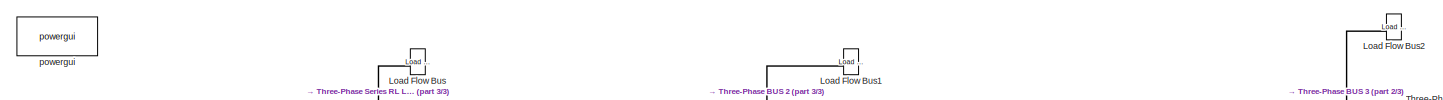
[diagram: root canvas - part 1/3, top center region]
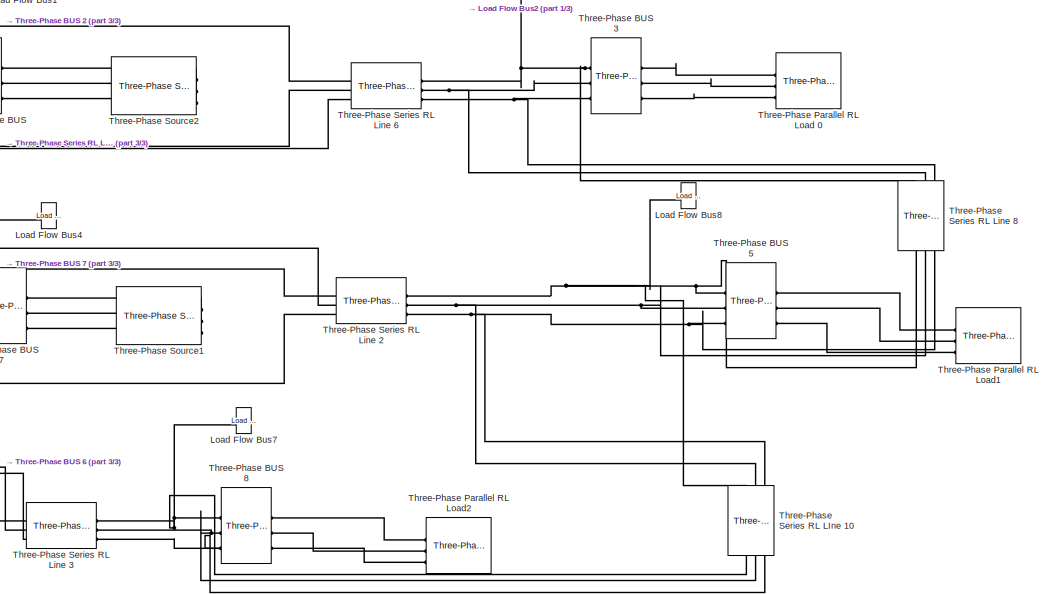
[diagram: root canvas - part 2/3, middle right region]
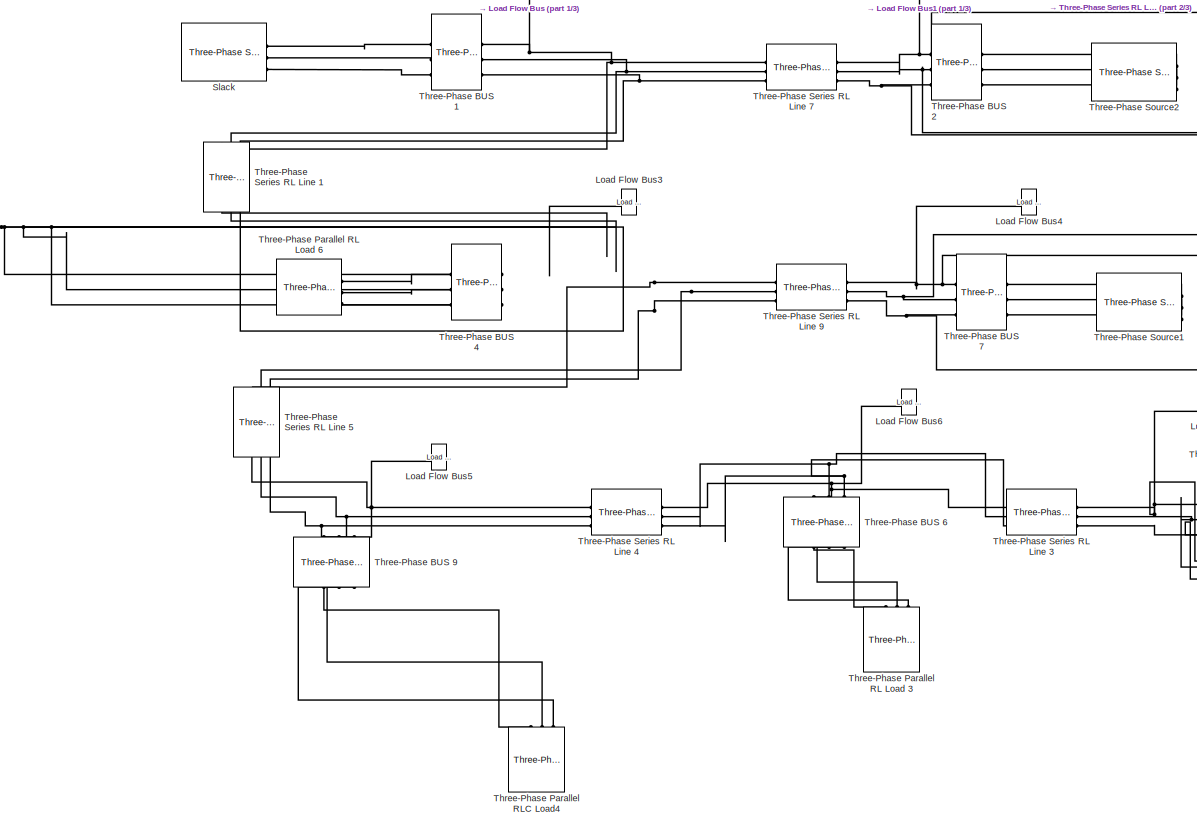
[diagram: root canvas - part 3/3, left side, full height]
MODEL slx_f0f31d5328f1
KIND model
CONFIG AbsTol = auto
CONFIG EnableMultiTasking = off
CONFIG FixedStep = auto
CONFIG MaxStep = auto
CONFIG MinStep = auto
CONFIG RelTol = 1e-3
CONFIG SampleTimeConstraint = Unconstrained
CONFIG SolverName = VariableStepAuto
CONFIG StartTime = 0.0
CONFIG StopTime = 10.0
BLOCK [Reference] Load Flow Bus  REF=spsLoadFlowBusLib/Load Flow Bus
  AttributesFormatString = %<ID>\n%<Vbase>V\n%<VLF>pu\n%<angleLF>deg.
  LibrarySourceBlock = sps_lib/Utilities/Load Flow Bus
  SourceBlock = spsLoadFlowBusLib/Load Flow Bus
  SourceType = Load Flow Bus
BLOCK [Reference] Load Flow Bus1  REF=spsLoadFlowBusLib/Load Flow Bus
  AttributesFormatString = %<ID>\n%<Vbase>V\n%<VLF>pu\n%<angleLF>deg.
  LibrarySourceBlock = sps_lib/Utilities/Load Flow Bus
  SourceBlock = spsLoadFlowBusLib/Load Flow Bus
  SourceType = Load Flow Bus
BLOCK [Reference] Load Flow Bus2  REF=spsLoadFlowBusLib/Load Flow Bus
  AttributesFormatString = %<ID>\n%<Vbase>V\n%<VLF>pu\n%<angleLF>deg.
  LibrarySourceBlock = sps_lib/Utilities/Load Flow Bus
  SourceBlock = spsLoadFlowBusLib/Load Flow Bus
  SourceType = Load Flow Bus
BLOCK [Reference] Load Flow Bus3  REF=spsLoadFlowBusLib/Load Flow Bus
  AttributesFormatString = %<ID>\n%<Vbase>V\n%<VLF>pu\n%<angleLF>deg.
  LibrarySourceBlock = sps_lib/Utilities/Load Flow Bus
  SourceBlock = spsLoadFlowBusLib/Load Flow Bus
  SourceType = Load Flow Bus
BLOCK [Reference] Load Flow Bus4  REF=spsLoadFlowBusLib/Load Flow Bus
  AttributesFormatString = %<ID>\n%<Vbase>V\n%<VLF>pu\n%<angleLF>deg.
  LibrarySourceBlock = sps_lib/Utilities/Load Flow Bus
  SourceBlock = spsLoadFlowBusLib/Load Flow Bus
  SourceType = Load Flow Bus
BLOCK [Reference] Load Flow Bus5  REF=spsLoadFlowBusLib/Load Flow Bus
  AttributesFormatString = %<ID>\n%<Vbase>V\n%<VLF>pu\n%<angleLF>deg.
  LibrarySourceBlock = sps_lib/Utilities/Load Flow Bus
  SourceBlock = spsLoadFlowBusLib/Load Flow Bus
  SourceType = Load Flow Bus
BLOCK [Reference] Load Flow Bus6  REF=spsLoadFlowBusLib/Load Flow Bus
  AttributesFormatString = %<ID>\n%<Vbase>V\n%<VLF>pu\n%<angleLF>deg.
  LibrarySourceBlock = sps_lib/Utilities/Load Flow Bus
  SourceBlock = spsLoadFlowBusLib/Load Flow Bus
  SourceType = Load Flow Bus
BLOCK [Reference] Load Flow Bus7  REF=spsLoadFlowBusLib/Load Flow Bus
  AttributesFormatString = %<ID>\n%<Vbase>V\n%<VLF>pu\n%<angleLF>deg.
  LibrarySourceBlock = sps_lib/Utilities/Load Flow Bus
  SourceBlock = spsLoadFlowBusLib/Load Flow Bus
  SourceType = Load Flow Bus
BLOCK [Reference] Load Flow Bus8  REF=spsLoadFlowBusLib/Load Flow Bus
  AttributesFormatString = %<ID>\n%<Vbase>V\n%<VLF>pu\n%<angleLF>deg.
  LibrarySourceBlock = sps_lib/Utilities/Load Flow Bus
  SourceBlock = spsLoadFlowBusLib/Load Flow Bus
  SourceType = Load Flow Bus
BLOCK [Reference] Slack  REF=spsThreePhaseSourceLib/Three-Phase Source
  LibrarySourceBlock = sps_lib/Sources/Three-Phase Source
  SourceBlock = spsThreePhaseSourceLib/Three-Phase Source
  SourceType = Three-Phase Source
BLOCK [Reference] Three-Phase BUS 1  REF=spsThreePhaseVIMeasurementLib/Three-Phase
V-I Measurement
  LibrarySourceBlock = sps_lib/Sensors and Measurements/Three-Phase\nV-I Measurement
  SourceBlock = spsThreePhaseVIMeasurementLib/Three-Phase\nV-I Measurement
  SourceType = Three-Phase VI Measurement
BLOCK [Reference] Three-Phase BUS 2  REF=spsThreePhaseVIMeasurementLib/Three-Phase
V-I Measurement
  LibrarySourceBlock = sps_lib/Sensors and Measurements/Three-Phase\nV-I Measurement
  SourceBlock = spsThreePhaseVIMeasurementLib/Three-Phase\nV-I Measurement
  SourceType = Three-Phase VI Measurement
BLOCK [Reference] Three-Phase BUS 3  REF=spsThreePhaseVIMeasurementLib/Three-Phase
V-I Measurement
  LibrarySourceBlock = sps_lib/Sensors and Measurements/Three-Phase\nV-I Measurement
  SourceBlock = spsThreePhaseVIMeasurementLib/Three-Phase\nV-I Measurement
  SourceType = Three-Phase VI Measurement
BLOCK [Reference] Three-Phase BUS 4  REF=spsThreePhaseVIMeasurementLib/Three-Phase
V-I Measurement
  LibrarySourceBlock = sps_lib/Sensors and Measurements/Three-Phase\nV-I Measurement
  SourceBlock = spsThreePhaseVIMeasurementLib/Three-Phase\nV-I Measurement
  SourceType = Three-Phase VI Measurement
BLOCK [Reference] Three-Phase BUS 5  REF=spsThreePhaseVIMeasurementLib/Three-Phase
V-I Measurement
  LibrarySourceBlock = sps_lib/Sensors and Measurements/Three-Phase\nV-I Measurement
  SourceBlock = spsThreePhaseVIMeasurementLib/Three-Phase\nV-I Measurement
  SourceType = Three-Phase VI Measurement
BLOCK [Reference] Three-Phase BUS 6  REF=spsThreePhaseVIMeasurementLib/Three-Phase
V-I Measurement
  LibrarySourceBlock = sps_lib/Sensors and Measurements/Three-Phase\nV-I Measurement
  NameLocation = left
  SourceBlock = spsThreePhaseVIMeasurementLib/Three-Phase\nV-I Measurement
  SourceType = Three-Phase VI Measurement
BLOCK [Reference] Three-Phase BUS 7  REF=spsThreePhaseVIMeasurementLib/Three-Phase
V-I Measurement
  LibrarySourceBlock = sps_lib/Sensors and Measurements/Three-Phase\nV-I Measurement
  SourceBlock = spsThreePhaseVIMeasurementLib/Three-Phase\nV-I Measurement
  SourceType = Three-Phase VI Measurement
BLOCK [Reference] Three-Phase BUS 8  REF=spsThreePhaseVIMeasurementLib/Three-Phase
V-I Measurement
  LibrarySourceBlock = sps_lib/Sensors and Measurements/Three-Phase\nV-I Measurement
  SourceBlock = spsThreePhaseVIMeasurementLib/Three-Phase\nV-I Measurement
  SourceType = Three-Phase VI Measurement
BLOCK [Reference] Three-Phase BUS 9  REF=spsThreePhaseVIMeasurementLib/Three-Phase
V-I Measurement
  LibrarySourceBlock = sps_lib/Sensors and Measurements/Three-Phase\nV-I Measurement
  NameLocation = left
  SourceBlock = spsThreePhaseVIMeasurementLib/Three-Phase\nV-I Measurement
  SourceType = Three-Phase VI Measurement
BLOCK [Reference] Three-Phase Parallel RL Load 0  REF=spsThreePhaseParallelRLCLoadLib/Three-Phase
Parallel RLC Load
  AttributesFormatString = \n
  LibrarySourceBlock = sps_lib/Passives/Three-Phase\nParallel RLC Load
  NameLocation = right
  SourceBlock = spsThreePhaseParallelRLCLoadLib/Three-Phase\nParallel RLC Load
  SourceType = Three-Phase Parallel RLC Load
BLOCK [Reference] Three-Phase Parallel RL Load 3  REF=spsThreePhaseParallelRLCLoadLib/Three-Phase
Parallel RLC Load
  AttributesFormatString = \n
  LibrarySourceBlock = sps_lib/Passives/Three-Phase\nParallel RLC Load
  SourceBlock = spsThreePhaseParallelRLCLoadLib/Three-Phase\nParallel RLC Load
  SourceType = Three-Phase Parallel RLC Load
BLOCK [Reference] Three-Phase Parallel RL Load 6  REF=spsThreePhaseParallelRLCLoadLib/Three-Phase
Parallel RLC Load
  AttributesFormatString = \n
  LibrarySourceBlock = sps_lib/Passives/Three-Phase\nParallel RLC Load
  NameLocation = left
  SourceBlock = spsThreePhaseParallelRLCLoadLib/Three-Phase\nParallel RLC Load
  SourceType = Three-Phase Parallel RLC Load
BLOCK [Reference] Three-Phase Parallel RL Load1  REF=spsThreePhaseParallelRLCLoadLib/Three-Phase
Parallel RLC Load
  AttributesFormatString = \n
  LibrarySourceBlock = sps_lib/Passives/Three-Phase\nParallel RLC Load
  NameLocation = right
  SourceBlock = spsThreePhaseParallelRLCLoadLib/Three-Phase\nParallel RLC Load
  SourceType = Three-Phase Parallel RLC Load
BLOCK [Reference] Three-Phase Parallel RL Load2  REF=spsThreePhaseParallelRLCLoadLib/Three-Phase
Parallel RLC Load
  AttributesFormatString = \n
  LibrarySourceBlock = sps_lib/Passives/Three-Phase\nParallel RLC Load
  NameLocation = right
  SourceBlock = spsThreePhaseParallelRLCLoadLib/Three-Phase\nParallel RLC Load
  SourceType = Three-Phase Parallel RLC Load
BLOCK [Reference] Three-Phase Parallel RLC Load4  REF=spsThreePhaseParallelRLCLoadLib/Three-Phase
Parallel RLC Load
  AttributesFormatString = \n
  LibrarySourceBlock = sps_lib/Passives/Three-Phase\nParallel RLC Load
  SourceBlock = spsThreePhaseParallelRLCLoadLib/Three-Phase\nParallel RLC Load
  SourceType = Three-Phase Parallel RLC Load
BLOCK [Reference] Three-Phase Series RL LIne 10  REF=spsThreePhaseSeriesRLCBranchLib/Three-Phase
Series RLC Branch
  AttributesFormatString = \n
  LibrarySourceBlock = sps_lib/Passives/Three-Phase\nSeries RLC Branch
  NameLocation = left
  SourceBlock = spsThreePhaseSeriesRLCBranchLib/Three-Phase\nSeries RLC Branch
  SourceType = Three-Phase Series RLC Branch
BLOCK [Reference] Three-Phase Series RL Line  7  REF=spsThreePhaseSeriesRLCBranchLib/Three-Phase
Series RLC Branch
  AttributesFormatString = \n
  LibrarySourceBlock = sps_lib/Passives/Three-Phase\nSeries RLC Branch
  SourceBlock = spsThreePhaseSeriesRLCBranchLib/Three-Phase\nSeries RLC Branch
  SourceType = Three-Phase Series RLC Branch
BLOCK [Reference] Three-Phase Series RL Line 1  REF=spsThreePhaseSeriesRLCBranchLib/Three-Phase
Series RLC Branch
  AttributesFormatString = \n
  LibrarySourceBlock = sps_lib/Passives/Three-Phase\nSeries RLC Branch
  NameLocation = left
  SourceBlock = spsThreePhaseSeriesRLCBranchLib/Three-Phase\nSeries RLC Branch
  SourceType = Three-Phase Series RLC Branch
BLOCK [Reference] Three-Phase Series RL Line 2  REF=spsThreePhaseSeriesRLCBranchLib/Three-Phase
Series RLC Branch
  AttributesFormatString = \n
  LibrarySourceBlock = sps_lib/Passives/Three-Phase\nSeries RLC Branch
  SourceBlock = spsThreePhaseSeriesRLCBranchLib/Three-Phase\nSeries RLC Branch
  SourceType = Three-Phase Series RLC Branch
BLOCK [Reference] Three-Phase Series RL Line 3  REF=spsThreePhaseSeriesRLCBranchLib/Three-Phase
Series RLC Branch
  AttributesFormatString = \n
  LibrarySourceBlock = sps_lib/Passives/Three-Phase\nSeries RLC Branch
  SourceBlock = spsThreePhaseSeriesRLCBranchLib/Three-Phase\nSeries RLC Branch
  SourceType = Three-Phase Series RLC Branch
BLOCK [Reference] Three-Phase Series RL Line 4  REF=spsThreePhaseSeriesRLCBranchLib/Three-Phase
Series RLC Branch
  AttributesFormatString = \n
  LibrarySourceBlock = sps_lib/Passives/Three-Phase\nSeries RLC Branch
  SourceBlock = spsThreePhaseSeriesRLCBranchLib/Three-Phase\nSeries RLC Branch
  SourceType = Three-Phase Series RLC Branch
BLOCK [Reference] Three-Phase Series RL Line 5  REF=spsThreePhaseSeriesRLCBranchLib/Three-Phase
Series RLC Branch
  AttributesFormatString = \n
  LibrarySourceBlock = sps_lib/Passives/Three-Phase\nSeries RLC Branch
  NameLocation = left
  SourceBlock = spsThreePhaseSeriesRLCBranchLib/Three-Phase\nSeries RLC Branch
  SourceType = Three-Phase Series RLC Branch
BLOCK [Reference] Three-Phase Series RL Line 6  REF=spsThreePhaseSeriesRLCBranchLib/Three-Phase
Series RLC Branch
  AttributesFormatString = \n
  LibrarySourceBlock = sps_lib/Passives/Three-Phase\nSeries RLC Branch
  SourceBlock = spsThreePhaseSeriesRLCBranchLib/Three-Phase\nSeries RLC Branch
  SourceType = Three-Phase Series RLC Branch
BLOCK [Reference] Three-Phase Series RL Line 8  REF=spsThreePhaseSeriesRLCBranchLib/Three-Phase
Series RLC Branch
  AttributesFormatString = \n
  LibrarySourceBlock = sps_lib/Passives/Three-Phase\nSeries RLC Branch
  NameLocation = left
  SourceBlock = spsThreePhaseSeriesRLCBranchLib/Three-Phase\nSeries RLC Branch
  SourceType = Three-Phase Series RLC Branch
BLOCK [Reference] Three-Phase Series RL Line 9  REF=spsThreePhaseSeriesRLCBranchLib/Three-Phase
Series RLC Branch
  AttributesFormatString = \n
  LibrarySourceBlock = sps_lib/Passives/Three-Phase\nSeries RLC Branch
  SourceBlock = spsThreePhaseSeriesRLCBranchLib/Three-Phase\nSeries RLC Branch
  SourceType = Three-Phase Series RLC Branch
BLOCK [Reference] Three-Phase Source1  REF=spsThreePhaseSourceLib/Three-Phase Source
  LibrarySourceBlock = sps_lib/Sources/Three-Phase Source
  NameLocation = top
  SourceBlock = spsThreePhaseSourceLib/Three-Phase Source
  SourceType = Three-Phase Source
BLOCK [Reference] Three-Phase Source2  REF=spsThreePhaseSourceLib/Three-Phase Source
  LibrarySourceBlock = sps_lib/Sources/Three-Phase Source
  NameLocation = top
  SourceBlock = spsThreePhaseSourceLib/Three-Phase Source
  SourceType = Three-Phase Source
BLOCK [Reference] powergui  REF=sps_lib/powergui
  Priority = 1
  SourceBlock = sps_lib/powergui
  SourceType = PSB option menu block
PNET net1: Load Flow Bus1:LConn1 -- Three-Phase BUS 2:LConn1 -- Three-Phase Series RL Line  7:RConn1 -- Three-Phase Series RL Line 6:LConn1
PNET net2: Load Flow Bus2:LConn1 -- Three-Phase BUS 3:LConn1 -- Three-Phase Series RL Line 6:RConn1 -- Three-Phase Series RL Line 8:LConn1
PNET net3: Load Flow Bus3:LConn1 -- Three-Phase BUS 4:RConn1 -- Three-Phase Series RL Line 1:RConn1 -- Three-Phase Series RL Line 5:LConn1 -- Three-Phase Series RL Line 9:LConn1
PNET net4: Load Flow Bus4:LConn1 -- Three-Phase BUS 7:LConn1 -- Three-Phase Series RL Line 2:LConn1 -- Three-Phase Series RL Line 9:RConn1
PNET net5: Load Flow Bus5:LConn1 -- Three-Phase BUS 9:LConn1 -- Three-Phase Series RL Line 4:LConn1 -- Three-Phase Series RL Line 5:RConn1
PNET net6: Load Flow Bus6:LConn1 -- Three-Phase BUS 6:LConn1 -- Three-Phase Series RL Line 3:LConn1 -- Three-Phase Series RL Line 4:RConn1
PNET net7: Load Flow Bus7:LConn1 -- Three-Phase BUS 8:LConn1 -- Three-Phase Series RL LIne 10:RConn1 -- Three-Phase Series RL Line 3:RConn1
PNET net8: Load Flow Bus8:LConn1 -- Three-Phase BUS 5:LConn1 -- Three-Phase Series RL LIne 10:LConn1 -- Three-Phase Series RL Line 2:RConn1 -- Three-Phase Series RL Line 8:RConn1
PNET net9: Load Flow Bus:LConn1 -- Three-Phase BUS 1:RConn1 -- Three-Phase Series RL Line  7:LConn1 -- Three-Phase Series RL Line 1:LConn1
PLINE Slack:RConn1 -- Three-Phase BUS 1:LConn1
PLINE Slack:RConn2 -- Three-Phase BUS 1:LConn2
PLINE Slack:RConn3 -- Three-Phase BUS 1:LConn3
PNET net10: Three-Phase BUS 1:RConn2 -- Three-Phase Series RL Line  7:LConn2 -- Three-Phase Series RL Line 1:LConn2
PNET net11: Three-Phase BUS 1:RConn3 -- Three-Phase Series RL Line  7:LConn3 -- Three-Phase Series RL Line 1:LConn3
PNET net12: Three-Phase BUS 2:LConn2 -- Three-Phase Series RL Line  7:RConn2 -- Three-Phase Series RL Line 6:LConn2
PNET net13: Three-Phase BUS 2:LConn3 -- Three-Phase Series RL Line  7:RConn3 -- Three-Phase Series RL Line 6:LConn3
PLINE Three-Phase BUS 2:RConn1 -- Three-Phase Source2:RConn3
PLINE Three-Phase BUS 2:RConn2 -- Three-Phase Source2:RConn2
PLINE Three-Phase BUS 2:RConn3 -- Three-Phase Source2:RConn1
PNET net14: Three-Phase BUS 3:LConn2 -- Three-Phase Series RL Line 6:RConn2 -- Three-Phase Series RL Line 8:LConn2
PNET net15: Three-Phase BUS 3:LConn3 -- Three-Phase Series RL Line 6:RConn3 -- Three-Phase Series RL Line 8:LConn3
PLINE Three-Phase BUS 3:RConn1 -- Three-Phase Parallel RL Load 0:LConn1
PLINE Three-Phase BUS 3:RConn2 -- Three-Phase Parallel RL Load 0:LConn2
PLINE Three-Phase BUS 3:RConn3 -- Three-Phase Parallel RL Load 0:LConn3
PLINE Three-Phase BUS 4:LConn1 -- Three-Phase Parallel RL Load 6:LConn1
PLINE Three-Phase BUS 4:LConn2 -- Three-Phase Parallel RL Load 6:LConn2
PLINE Three-Phase BUS 4:LConn3 -- Three-Phase Parallel RL Load 6:LConn3
PNET net16: Three-Phase BUS 4:RConn2 -- Three-Phase Series RL Line 1:RConn2 -- Three-Phase Series RL Line 5:LConn2 -- Three-Phase Series RL Line 9:LConn2
PNET net17: Three-Phase BUS 4:RConn3 -- Three-Phase Series RL Line 1:RConn3 -- Three-Phase Series RL Line 5:LConn3 -- Three-Phase Series RL Line 9:LConn3
PNET net18: Three-Phase BUS 5:LConn2 -- Three-Phase Series RL LIne 10:LConn2 -- Three-Phase Series RL Line 2:RConn2 -- Three-Phase Series RL Line 8:RConn2
PNET net19: Three-Phase BUS 5:LConn3 -- Three-Phase Series RL LIne 10:LConn3 -- Three-Phase Series RL Line 2:RConn3 -- Three-Phase Series RL Line 8:RConn3
PLINE Three-Phase BUS 5:RConn1 -- Three-Phase Parallel RL Load1:LConn1
PLINE Three-Phase BUS 5:RConn2 -- Three-Phase Parallel RL Load1:LConn2
PLINE Three-Phase BUS 5:RConn3 -- Three-Phase Parallel RL Load1:LConn3
PNET net20: Three-Phase BUS 6:LConn2 -- Three-Phase Series RL Line 3:LConn2 -- Three-Phase Series RL Line 4:RConn2
PNET net21: Three-Phase BUS 6:LConn3 -- Three-Phase Series RL Line 3:LConn3 -- Three-Phase Series RL Line 4:RConn3
PLINE Three-Phase BUS 6:RConn1 -- Three-Phase Parallel RL Load 3:LConn1
PLINE Three-Phase BUS 6:RConn2 -- Three-Phase Parallel RL Load 3:LConn2
PLINE Three-Phase BUS 6:RConn3 -- Three-Phase Parallel RL Load 3:LConn3
PNET net22: Three-Phase BUS 7:LConn2 -- Three-Phase Series RL Line 2:LConn2 -- Three-Phase Series RL Line 9:RConn2
PNET net23: Three-Phase BUS 7:LConn3 -- Three-Phase Series RL Line 2:LConn3 -- Three-Phase Series RL Line 9:RConn3
PLINE Three-Phase BUS 7:RConn1 -- Three-Phase Source1:RConn3
PLINE Three-Phase BUS 7:RConn2 -- Three-Phase Source1:RConn2
PLINE Three-Phase BUS 7:RConn3 -- Three-Phase Source1:RConn1
PNET net24: Three-Phase BUS 8:LConn2 -- Three-Phase Series RL LIne 10:RConn2 -- Three-Phase Series RL Line 3:RConn2
PNET net25: Three-Phase BUS 8:LConn3 -- Three-Phase Series RL LIne 10:RConn3 -- Three-Phase Series RL Line 3:RConn3
PLINE Three-Phase BUS 8:RConn1 -- Three-Phase Parallel RL Load2:LConn1
PLINE Three-Phase BUS 8:RConn2 -- Three-Phase Parallel RL Load2:LConn2
PLINE Three-Phase BUS 8:RConn3 -- Three-Phase Parallel RL Load2:LConn3
PNET net26: Three-Phase BUS 9:LConn2 -- Three-Phase Series RL Line 4:LConn2 -- Three-Phase Series RL Line 5:RConn2
PNET net27: Three-Phase BUS 9:LConn3 -- Three-Phase Series RL Line 4:LConn3 -- Three-Phase Series RL Line 5:RConn3
PLINE Three-Phase BUS 9:RConn1 -- Three-Phase Parallel RLC Load4:LConn1
PLINE Three-Phase BUS 9:RConn2 -- Three-Phase Parallel RLC Load4:LConn2
PLINE Three-Phase BUS 9:RConn3 -- Three-Phase Parallel RLC Load4:LConn3
note: PNET lines group multi-terminal physical nets as a canonical sorted terminal list (undirected conserving connections); 2-terminal nets keep the pairwise PLINE form
